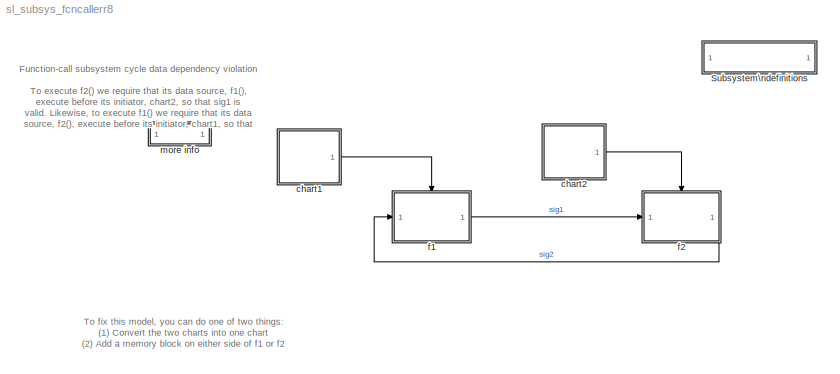
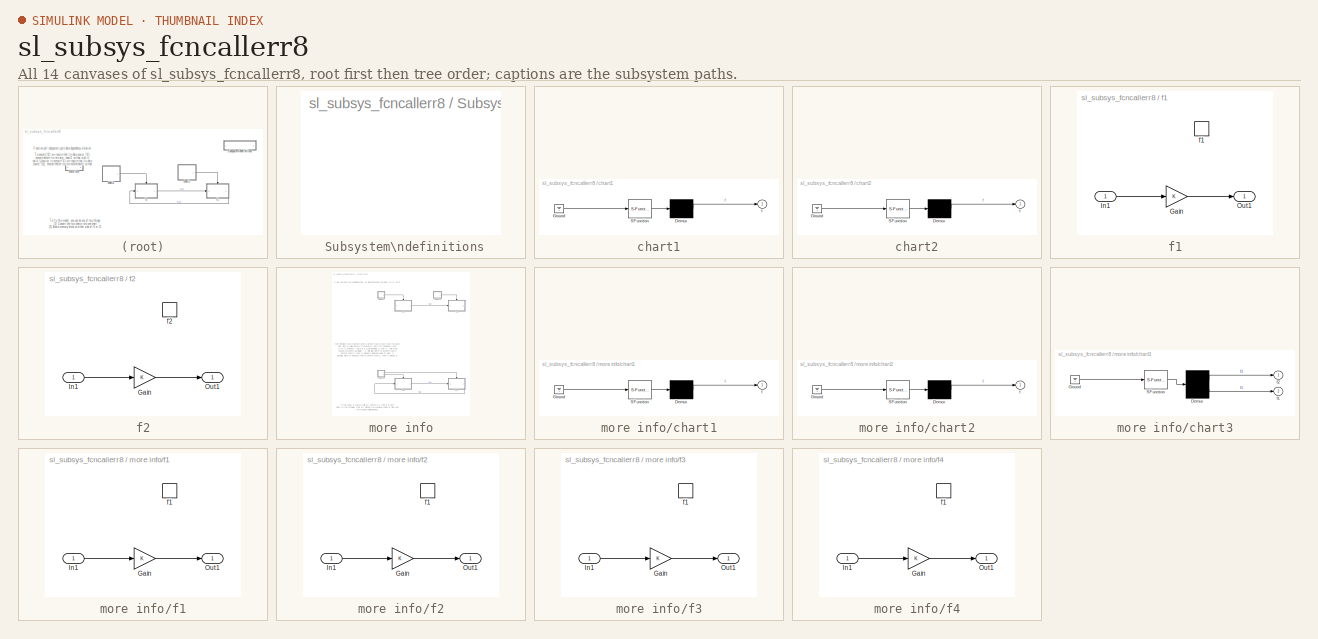
[diagram: thumbnail index - all 14 canvases of the model, root first then tree order]
MODEL sl_subsys_fcncallerr8
KIND model
BLOCK [SubSystem]  Subsystem\ndefinitions
  MaskDisplay = disp('Subsystem\\ndefinitions')\n\n
  MaskIconFrame = on
  MaskIconOpaque = on
  MaskIconRotate = none
  MaskIconUnits = autoscale
  MinAlgLoopOccurrences = off
  OpenFcn = helpview([matlabroot,'/toolbox/simulink/simdemos/sl_subsys_definitions.html']);
  Ports = []
  PropExecContextAcrossSSBoundary = on
  RTWSystemCode = Auto
  TreatAsAtomicUnit = off
BLOCK [SubSystem] chart1
  MaskDescription = Stateflow diagram
  MaskDisplay = plot(sf('Private','sfblk','xIcon'),sf('Private','sfblk','yIcon'));text(0.5,0,sf('Private', 'sfblk', 'tIcon'),'HorizontalAl','Center','VerticalAl','Bottom');
  MaskIconFrame = off
  MaskIconOpaque = off
  MaskIconRotate = none
  MaskIconUnits = autoscale
  MaskSelfModifiable = on
  MaskType = Stateflow
  MinAlgLoopOccurrences = off
  Ports = [0, 1]
  PropExecContextAcrossSSBoundary = on
  RTWSystemCode = Auto
  TreatAsAtomicUnit = off
BLOCK [Demux] chart1/ Demux 
  Outputs = 1
  Ports = [1, 1]
BLOCK [Ground] chart1/ Ground 
BLOCK [S-Function] chart1/ SFunction 
  FunctionName = sf_sfun
  PortCounts = [1 1]
  Ports = [1, 1]
  Tag = Stateflow S-Function sl_subsys_fcncallerr8 2
BLOCK [Outport] chart1/f
  IconDisplay = Port number
BLOCK [SubSystem] chart2
  MaskDescription = Stateflow diagram
  MaskDisplay = plot(sf('Private','sfblk','xIcon'),sf('Private','sfblk','yIcon'));text(0.5,0,sf('Private', 'sfblk', 'tIcon'),'HorizontalAl','Center','VerticalAl','Bottom');
  MaskIconFrame = off
  MaskIconOpaque = off
  MaskIconRotate = none
  MaskIconUnits = autoscale
  MaskSelfModifiable = on
  MaskType = Stateflow
  MinAlgLoopOccurrences = off
  Ports = [0, 1]
  PropExecContextAcrossSSBoundary = on
  RTWSystemCode = Auto
  TreatAsAtomicUnit = off
BLOCK [Demux] chart2/ Demux 
  Outputs = 1
  Ports = [1, 1]
BLOCK [Ground] chart2/ Ground 
BLOCK [S-Function] chart2/ SFunction 
  FunctionName = sf_sfun
  PortCounts = [1 1]
  Ports = [1, 1]
  Tag = Stateflow S-Function sl_subsys_fcncallerr8 1
BLOCK [Outport] chart2/f
  IconDisplay = Port number
BLOCK [SubSystem] f1
  MinAlgLoopOccurrences = off
  Ports = [1, 1, 0, 1]
  PropExecContextAcrossSSBoundary = on
  RTWSystemCode = Auto
  TreatAsAtomicUnit = on
BLOCK [Gain] f1/Gain
BLOCK [Inport] f1/In1
  IconDisplay = Port number
  LatchInput = off
  Port = 1
BLOCK [Outport] f1/Out1
  IconDisplay = Port number
BLOCK [TriggerPort] f1/f1
  Ports = []
  TriggerType = function-call
BLOCK [SubSystem] f2
  MinAlgLoopOccurrences = off
  Ports = [1, 1, 0, 1]
  PropExecContextAcrossSSBoundary = on
  RTWSystemCode = Auto
  TreatAsAtomicUnit = on
BLOCK [Gain] f2/Gain
BLOCK [Inport] f2/In1
  IconDisplay = Port number
  LatchInput = off
  Port = 1
BLOCK [Outport] f2/Out1
  IconDisplay = Port number
BLOCK [TriggerPort] f2/f2
  Ports = []
  TriggerType = function-call
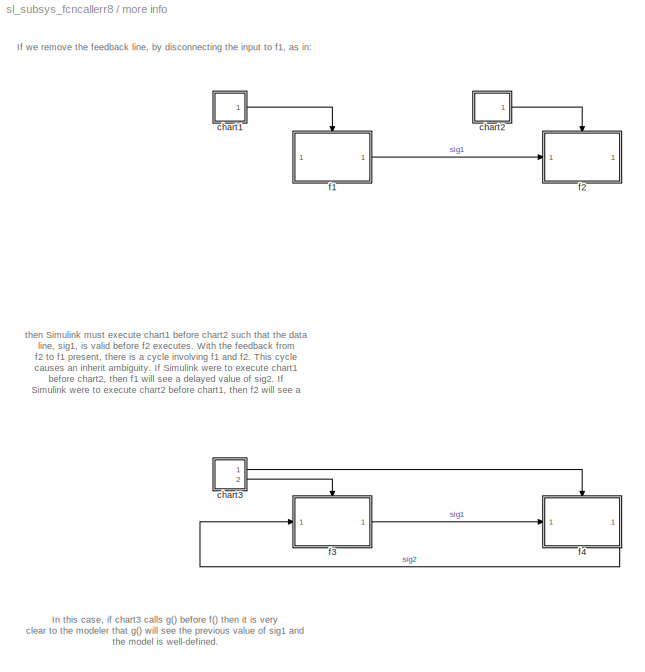
BLOCK [SubSystem] more info
  MaskDisplay = disp(get_param(gcb,'name'))
  MaskIconFrame = on
  MaskIconOpaque = on
  MaskIconRotate = none
  MaskIconUnits = autoscale
  MinAlgLoopOccurrences = off
  Ports = []
  PropExecContextAcrossSSBoundary = on
  RTWSystemCode = Auto
  TreatAsAtomicUnit = off
BLOCK [SubSystem] more info/chart1
  MaskDescription = Stateflow diagram
  MaskDisplay = plot(sf('Private','sfblk','xIcon'),sf('Private','sfblk','yIcon'));text(0.5,0,sf('Private', 'sfblk', 'tIcon'),'HorizontalAl','Center','VerticalAl','Bottom');
  MaskIconFrame = off
  MaskIconOpaque = off
  MaskIconRotate = none
  MaskIconUnits = autoscale
  MaskSelfModifiable = on
  MaskType = Stateflow
  MinAlgLoopOccurrences = off
  Ports = [0, 1]
  PropExecContextAcrossSSBoundary = on
  RTWSystemCode = Auto
  TreatAsAtomicUnit = off
BLOCK [Demux] more info/chart1/ Demux 
  Outputs = 1
  Ports = [1, 1]
BLOCK [Ground] more info/chart1/ Ground 
BLOCK [S-Function] more info/chart1/ SFunction 
  FunctionName = sf_sfun
  PortCounts = [1 1]
  Ports = [1, 1]
  Tag = Stateflow S-Function sl_subsys_fcncallerr8 3
BLOCK [Outport] more info/chart1/f
  IconDisplay = Port number
BLOCK [SubSystem] more info/chart2
  MaskDescription = Stateflow diagram
  MaskDisplay = plot(sf('Private','sfblk','xIcon'),sf('Private','sfblk','yIcon'));text(0.5,0,sf('Private', 'sfblk', 'tIcon'),'HorizontalAl','Center','VerticalAl','Bottom');
  MaskIconFrame = off
  MaskIconOpaque = off
  MaskIconRotate = none
  MaskIconUnits = autoscale
  MaskSelfModifiable = on
  MaskType = Stateflow
  MinAlgLoopOccurrences = off
  Ports = [0, 1]
  PropExecContextAcrossSSBoundary = on
  RTWSystemCode = Auto
  TreatAsAtomicUnit = off
BLOCK [Demux] more info/chart2/ Demux 
  Outputs = 1
  Ports = [1, 1]
BLOCK [Ground] more info/chart2/ Ground 
BLOCK [S-Function] more info/chart2/ SFunction 
  FunctionName = sf_sfun
  PortCounts = [1 1]
  Ports = [1, 1]
  Tag = Stateflow S-Function sl_subsys_fcncallerr8 4
BLOCK [Outport] more info/chart2/f
  IconDisplay = Port number
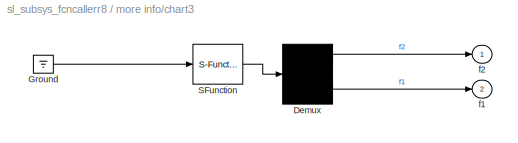
BLOCK [SubSystem] more info/chart3
  MaskDescription = Stateflow diagram
  MaskDisplay = plot(sf('Private','sfblk','xIcon'),sf('Private','sfblk','yIcon'));text(0.5,0,sf('Private', 'sfblk', 'tIcon'),'HorizontalAl','Center','VerticalAl','Bottom');
  MaskIconFrame = off
  MaskIconOpaque = off
  MaskIconRotate = none
  MaskIconUnits = autoscale
  MaskSelfModifiable = on
  MaskType = Stateflow
  MinAlgLoopOccurrences = off
  Ports = [0, 2]
  PropExecContextAcrossSSBoundary = on
  RTWSystemCode = Auto
  TreatAsAtomicUnit = off
BLOCK [Demux] more info/chart3/ Demux 
  Outputs = 2
  Ports = [1, 2]
BLOCK [Ground] more info/chart3/ Ground 
BLOCK [S-Function] more info/chart3/ SFunction 
  FunctionName = sf_sfun
  PortCounts = [1 1]
  Ports = [1, 1]
  Tag = Stateflow S-Function sl_subsys_fcncallerr8 5
BLOCK [Outport] more info/chart3/f1
  IconDisplay = Port number
  Port = 2
BLOCK [Outport] more info/chart3/f2
  IconDisplay = Port number
BLOCK [SubSystem] more info/f1
  MinAlgLoopOccurrences = off
  Ports = [1, 1, 0, 1]
  PropExecContextAcrossSSBoundary = on
  RTWSystemCode = Auto
  TreatAsAtomicUnit = on
BLOCK [Gain] more info/f1/Gain
BLOCK [Inport] more info/f1/In1
  IconDisplay = Port number
  LatchInput = off
  Port = 1
BLOCK [Outport] more info/f1/Out1
  IconDisplay = Port number
BLOCK [TriggerPort] more info/f1/f1
  Ports = []
  TriggerType = function-call
BLOCK [SubSystem] more info/f2
  MinAlgLoopOccurrences = off
  Ports = [1, 1, 0, 1]
  PropExecContextAcrossSSBoundary = on
  RTWSystemCode = Auto
  TreatAsAtomicUnit = on
BLOCK [Gain] more info/f2/Gain
BLOCK [Inport] more info/f2/In1
  IconDisplay = Port number
  LatchInput = off
  Port = 1
BLOCK [Outport] more info/f2/Out1
  IconDisplay = Port number
BLOCK [TriggerPort] more info/f2/f1
  Ports = []
  TriggerType = function-call
BLOCK [SubSystem] more info/f3
  MinAlgLoopOccurrences = off
  Ports = [1, 1, 0, 1]
  PropExecContextAcrossSSBoundary = on
  RTWSystemCode = Auto
  TreatAsAtomicUnit = on
BLOCK [Gain] more info/f3/Gain
BLOCK [Inport] more info/f3/In1
  IconDisplay = Port number
  LatchInput = off
  Port = 1
BLOCK [Outport] more info/f3/Out1
  IconDisplay = Port number
BLOCK [TriggerPort] more info/f3/f1
  Ports = []
  TriggerType = function-call
BLOCK [SubSystem] more info/f4
  MinAlgLoopOccurrences = off
  Ports = [1, 1, 0, 1]
  PropExecContextAcrossSSBoundary = on
  RTWSystemCode = Auto
  TreatAsAtomicUnit = on
BLOCK [Gain] more info/f4/Gain
BLOCK [Inport] more info/f4/In1
  IconDisplay = Port number
  LatchInput = off
  Port = 1
BLOCK [Outport] more info/f4/Out1
  IconDisplay = Port number
BLOCK [TriggerPort] more info/f4/f1
  Ports = []
  TriggerType = function-call
ANNOTATION (root): Function-call subsystem cycle data dependency violation\n\nTo execute f2() we require that its data source, f1(),\nexecute before its initiator, chart2, so that sig1 is\nvalid. Likewise, to execute f1() we require that its data\nsource, f2(), execute before its initiator, chart1, so that\nsig2 is valid. Hence the data dependency violation.\n
ANNOTATION (root): To fix this model, you can do one of two things:\n(1) Convert the two charts into one chart\n(2) Add a memory block on either side of f1 or f2
ANNOTATION more info: In this case, if chart3 calls g() before f() then it is very\n clear to the modeler that g() will see the previous value of sig1 and\n the model is well-defined.\n
ANNOTATION more info: If we remove the feedback line, by disconnecting the input to f1, as in:
ANNOTATION more info: then Simulink must execute chart1 before chart2 such that the data\nline, sig1, is valid before f2 executes. With the feedback from\nf2 to f1 present, there is a cycle involving f1 and f2. This cycle\ncauses an inherit ambiguity. If Simulink were to execute chart1\nbefore chart2, then f1 will see a delayed value of sig2. If\nSimulink were to execute chart2 before chart1, then f2 will see a\ndelaye...<+295ch>
LINE chart1/ Demux :1 -> chart1/f:1
LINE chart1/ Ground :1 -> chart1/ SFunction :1
LINE chart1/ SFunction :1 -> chart1/ Demux :1
LINE chart1:1 -> f1:trigger
LINE chart2/ Demux :1 -> chart2/f:1
LINE chart2/ Ground :1 -> chart2/ SFunction :1
LINE chart2/ SFunction :1 -> chart2/ Demux :1
LINE chart2:1 -> f2:trigger
LINE f1/Gain:1 -> f1/Out1:1
LINE f1/In1:1 -> f1/Gain:1
LINE f1:1 -> f2:1
LINE f2/Gain:1 -> f2/Out1:1
LINE f2/In1:1 -> f2/Gain:1
LINE f2:1 -> f1:1
LINE more info/chart1/ Demux :1 -> more info/chart1/f:1
LINE more info/chart1/ Ground :1 -> more info/chart1/ SFunction :1
LINE more info/chart1/ SFunction :1 -> more info/chart1/ Demux :1
LINE more info/chart1:1 -> more info/f1:trigger
LINE more info/chart2/ Demux :1 -> more info/chart2/f:1
LINE more info/chart2/ Ground :1 -> more info/chart2/ SFunction :1
LINE more info/chart2/ SFunction :1 -> more info/chart2/ Demux :1
LINE more info/chart2:1 -> more info/f2:trigger
LINE more info/chart3/ Demux :1 -> more info/chart3/f2:1
LINE more info/chart3/ Demux :2 -> more info/chart3/f1:1
LINE more info/chart3/ Ground :1 -> more info/chart3/ SFunction :1
LINE more info/chart3/ SFunction :1 -> more info/chart3/ Demux :1
LINE more info/chart3:1 -> more info/f4:trigger
LINE more info/chart3:2 -> more info/f3:trigger
LINE more info/f1/Gain:1 -> more info/f1/Out1:1
LINE more info/f1/In1:1 -> more info/f1/Gain:1
LINE more info/f1:1 -> more info/f2:1
LINE more info/f2/Gain:1 -> more info/f2/Out1:1
LINE more info/f2/In1:1 -> more info/f2/Gain:1
LINE more info/f3/Gain:1 -> more info/f3/Out1:1
LINE more info/f3/In1:1 -> more info/f3/Gain:1
LINE more info/f3:1 -> more info/f4:1
LINE more info/f4/Gain:1 -> more info/f4/Out1:1
LINE more info/f4/In1:1 -> more info/f4/Gain:1
LINE more info/f4:1 -> more info/f3:1
CHART chart2 states=2 transitions=3
  STATE_LABEL 'one/\\nentry: f;'
  STATE_LABEL 'two/\\nentry: f;'
CHART chart1 states=2 transitions=3
  STATE_LABEL 'one/\\nentry: f;'
  STATE_LABEL 'two/\\nentry: f;'
CHART more info/chart1 states=2 transitions=3
  STATE_LABEL 'one/\\nentry: f;'
  STATE_LABEL 'two/\\nentry: f;'
CHART more info/chart2 states=2 transitions=3
  STATE_LABEL 'one/\\nentry: f;'
  STATE_LABEL 'two/\\nentry: f;'
CHART more info/chart3 states=2 transitions=3
  STATE_LABEL 'one/\\nentry: f1;f2;'
  STATE_LABEL 'two/\\nentry: f2;f1;'
